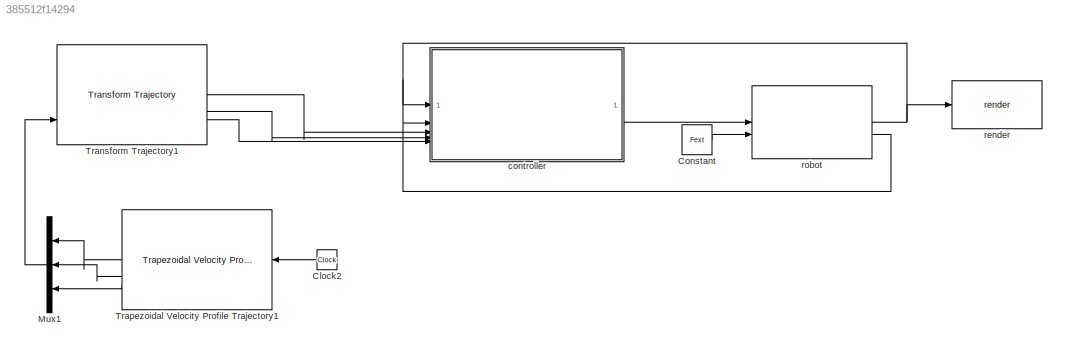
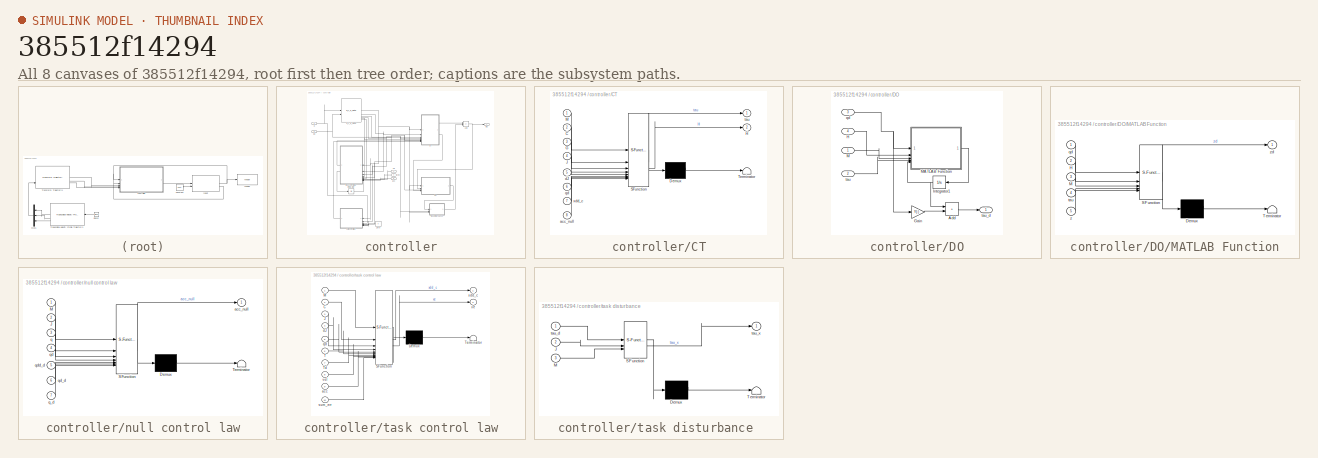
[diagram: thumbnail index - all 8 canvases of the model, root first then tree order]
MODEL slx_385512f14294
KIND model
CONFIG AbsTol = auto
CONFIG EnableMultiTasking = off
CONFIG FixedStep = auto
CONFIG MaxStep = 0.2
CONFIG MinStep = auto
CONFIG PostLoadFcn = rigid_body = importrobot('urdf\lbr_description\urdf\iiwa7.urdf');\nrigid_body.DataFormat = 'column';\nrigid_body.Gravity = [0 0 -9.81];\ninit_joint_pos = [0 75 0 -94 0 -81 0] / 180 * pi;\nrobot = get_robot_chain(rigid_body);\nn = robot.dof;\nT_init = forward_kin_general(robot, init_joint_pos);\nT_end = T_init;\nT_end(3,4) = T_end(3,4) + 0.5;\nFext = zeros(6,7);
CONFIG RelTol = 1e-3
CONFIG SampleTimeConstraint = Unconstrained
CONFIG SolverName = VariableStepAuto
CONFIG StartTime = 0.0
CONFIG StopTime = 10.0
BLOCK [Reference]  robot  REF=my_library/   (lib defined in slx_4b070192c2bc, slx_8dfaa4fb899d, +2 more)
  SourceBlock = my_library/
  SourceProductName = MyLibrary
BLOCK [Clock] Clock2
BLOCK [Constant] Constant
  Value = Fext
BLOCK [Mux] Mux1
  DisplayOption = bar
  Inputs = 3
BLOCK [Reference] Transform Trajectory1  REF=robotcorelib/Transform Trajectory
  LibrarySourceBlock = robotutilslib/Transform Trajectory
  SourceBlock = robotcorelib/Transform Trajectory
  SourceType = robotics.slcore.internal.block.TransformTrajSys
BLOCK [Reference] Trapezoidal Velocity Profile Trajectory1  REF=robotcorelib/Trapezoidal Velocity Profile Trajectory
  LibrarySourceBlock = robotutilslib/Trapezoidal Velocity Profile Trajectory
  SourceBlock = robotcorelib/Trapezoidal Velocity Profile Trajectory
  SourceType = robotics.slcore.internal.block.TrapVelTrajSys
BLOCK [SubSystem] controller
BLOCK [Sum] controller/Add
  IconShape = rectangular
  Inputs = +-
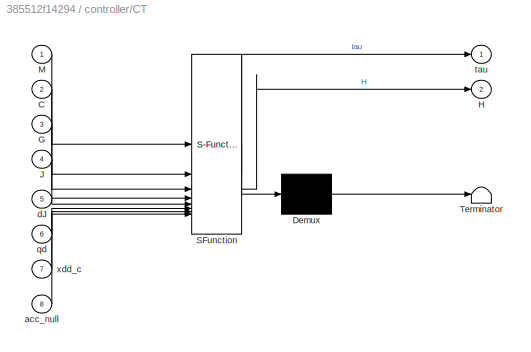
BLOCK [SubSystem] controller/CT
  ErrorFcn = Stateflow.Translate.translate
  PermitHierarchicalResolution = ExplicitOnly
  SFBlockType = MATLAB Function
  TreatAsAtomicUnit = on
BLOCK [Demux] controller/CT/ Demux 
  Outputs = 1
BLOCK [S-Function] controller/CT/ SFunction 
  EnableBusSupport = off
  FunctionName = sf_sfun
  PortCounts = [8 3]
  SFcnIsStateOwnerBlock = off
  SFunctionDeploymentMode = off
  Tag = Stateflow S-Function 8
BLOCK [Terminator] controller/CT/ Terminator 
BLOCK [Inport] controller/CT/C
  Port = 2
BLOCK [Inport] controller/CT/G
  Port = 3
BLOCK [Outport] controller/CT/H
  Port = 2
BLOCK [Inport] controller/CT/J
  Port = 4
BLOCK [Inport] controller/CT/M
BLOCK [Inport] controller/CT/acc_null
  Port = 8
BLOCK [Inport] controller/CT/dJ
  Port = 5
BLOCK [Inport] controller/CT/qd
  Port = 6
BLOCK [Outport] controller/CT/tau
  VectorParamsAs1DForOutWhenUnconnected = off
BLOCK [Inport] controller/CT/xdd_c
  Port = 7
BLOCK [SubSystem] controller/DO
BLOCK [Sum] controller/DO/Add
  IconShape = rectangular
BLOCK [Gain] controller/DO/Gain
  Gain = Y(:)
BLOCK [Inport] controller/DO/H
  Port = 4
BLOCK [Integrator] controller/DO/Integrator1
BLOCK [Inport] controller/DO/M
BLOCK [SubSystem] controller/DO/MATLAB Function
  ErrorFcn = Stateflow.Translate.translate
  PermitHierarchicalResolution = ExplicitOnly
  SFBlockType = MATLAB Function
  TreatAsAtomicUnit = on
BLOCK [Demux] controller/DO/MATLAB Function/ Demux 
  Outputs = 1
BLOCK [S-Function] controller/DO/MATLAB Function/ SFunction 
  EnableBusSupport = off
  FunctionName = sf_sfun
  Parameters = Y
  PortCounts = [5 2]
  SFcnIsStateOwnerBlock = off
  SFunctionDeploymentMode = off
  Tag = Stateflow S-Function 14
BLOCK [Terminator] controller/DO/MATLAB Function/ Terminator 
BLOCK [Inport] controller/DO/MATLAB Function/H
  Port = 2
BLOCK [Inport] controller/DO/MATLAB Function/M
  Port = 3
BLOCK [Inport] controller/DO/MATLAB Function/qd
BLOCK [Inport] controller/DO/MATLAB Function/tau
  Port = 4
BLOCK [Inport] controller/DO/MATLAB Function/z
  Port = 5
BLOCK [Outport] controller/DO/MATLAB Function/zd
  VectorParamsAs1DForOutWhenUnconnected = off
BLOCK [Inport] controller/DO/qd
  Port = 3
BLOCK [Inport] controller/DO/tau
  Port = 2
BLOCK [Outport] controller/DO/tau_d
BLOCK [Integrator] controller/Integrator
BLOCK [Inport] controller/Td
  Port = 3
BLOCK [Constant] controller/Zero
  OutDataTypeStr = Inherit: Inherit via back propagation
  Value = 0
BLOCK [Inport] controller/acc
  Port = 5
BLOCK [Reference] controller/m_c_g_matrix  REF=my_library/m_c_g_matrix  (lib defined in slx_4b070192c2bc, slx_8dfaa4fb899d, +2 more)
  SourceBlock = my_library/m_c_g_matrix
BLOCK [SubSystem] controller/null control law
  ErrorFcn = Stateflow.Translate.translate
  PermitHierarchicalResolution = ExplicitOnly
  SFBlockType = MATLAB Function
  TreatAsAtomicUnit = on
BLOCK [Demux] controller/null control law/ Demux 
  Outputs = 1
BLOCK [S-Function] controller/null control law/ SFunction 
  EnableBusSupport = off
  FunctionName = sf_sfun
  Parameters = Bn,Kn
  PortCounts = [7 2]
  SFcnIsStateOwnerBlock = off
  SFunctionDeploymentMode = off
  Tag = Stateflow S-Function 10
BLOCK [Terminator] controller/null control law/ Terminator 
BLOCK [Inport] controller/null control law/J
  Port = 2
BLOCK [Inport] controller/null control law/M
BLOCK [Outport] controller/null control law/acc_null
BLOCK [Inport] controller/null control law/q
  Port = 3
BLOCK [Inport] controller/null control law/q_d
  Port = 7
BLOCK [Inport] controller/null control law/qd
  Port = 4
BLOCK [Inport] controller/null control law/qd_d
  Port = 6
BLOCK [Inport] controller/null control law/qdd_d
  Port = 5
BLOCK [Inport] controller/q
BLOCK [Inport] controller/qd
  Port = 2
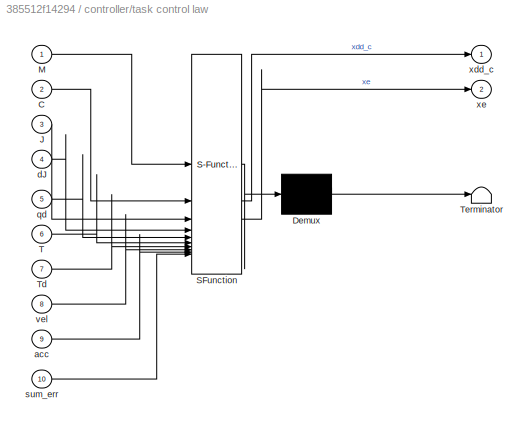
BLOCK [SubSystem] controller/task control law
  ErrorFcn = Stateflow.Translate.translate
  PermitHierarchicalResolution = ExplicitOnly
  SFBlockType = MATLAB Function
  TreatAsAtomicUnit = on
BLOCK [Demux] controller/task control law/ Demux 
  Outputs = 1
BLOCK [S-Function] controller/task control law/ SFunction 
  EnableBusSupport = off
  FunctionName = sf_sfun
  Parameters = Bx,Ki,Kx,mode
  PortCounts = [10 3]
  SFcnIsStateOwnerBlock = off
  SFunctionDeploymentMode = off
  Tag = Stateflow S-Function 9
BLOCK [Terminator] controller/task control law/ Terminator 
BLOCK [Inport] controller/task control law/C
  Port = 2
BLOCK [Inport] controller/task control law/J
  Port = 3
BLOCK [Inport] controller/task control law/M
BLOCK [Inport] controller/task control law/T
  Port = 6
BLOCK [Inport] controller/task control law/Td
  Port = 7
BLOCK [Inport] controller/task control law/acc
  Port = 9
BLOCK [Inport] controller/task control law/dJ
  Port = 4
BLOCK [Inport] controller/task control law/qd
  Port = 5
BLOCK [Inport] controller/task control law/sum_err
  Port = 10
BLOCK [Inport] controller/task control law/vel
  Port = 8
BLOCK [Outport] controller/task control law/xdd_c
BLOCK [Outport] controller/task control law/xe
  Port = 2
BLOCK [SubSystem] controller/task disturbance 
  ErrorFcn = Stateflow.Translate.translate
  PermitHierarchicalResolution = ExplicitOnly
  SFBlockType = MATLAB Function
  TreatAsAtomicUnit = on
BLOCK [Demux] controller/task disturbance / Demux 
  Outputs = 1
BLOCK [S-Function] controller/task disturbance / SFunction 
  EnableBusSupport = off
  FunctionName = sf_sfun
  PortCounts = [3 2]
  SFcnIsStateOwnerBlock = off
  SFunctionDeploymentMode = off
  Tag = Stateflow S-Function 11
BLOCK [Terminator] controller/task disturbance / Terminator 
BLOCK [Inport] controller/task disturbance /J
  Port = 2
BLOCK [Inport] controller/task disturbance /M
  Port = 3
BLOCK [Inport] controller/task disturbance /tau_d
BLOCK [Outport] controller/task disturbance /tau_x
BLOCK [Outport] controller/tau
BLOCK [Inport] controller/vel
  Port = 4
BLOCK [Reference] render  REF=my_library/render  (lib defined in slx_4b070192c2bc, slx_8dfaa4fb899d, +2 more)
  SourceBlock = my_library/render
  SourceProductName = MyLibrary
NET  robot:1 -> controller:1, render:1
LINE  robot:2 -> controller:2
LINE Clock2:1 -> Trapezoidal Velocity Profile Trajectory1:1
LINE Constant:1 ->  robot:2
LINE Mux1:1 -> Transform Trajectory1:3
LINE Transform Trajectory1:1 -> controller:3
LINE Transform Trajectory1:2 -> controller:4
LINE Transform Trajectory1:3 -> controller:5
LINE Trapezoidal Velocity Profile Trajectory1:1 -> Mux1:1
LINE Trapezoidal Velocity Profile Trajectory1:2 -> Mux1:2
LINE Trapezoidal Velocity Profile Trajectory1:3 -> Mux1:3
NET controller/Add:1 -> controller/DO:2, controller/tau:1
LINE controller/CT:1 -> controller/Add:1
LINE controller/CT:2 -> controller/DO:4
LINE controller/DO/Add:1 -> controller/DO/tau_d:1
LINE controller/DO/Gain:1 -> controller/DO/Add:2
LINE controller/DO/H:1 -> controller/DO/MATLAB Function:2
NET controller/DO/Integrator1:1 -> controller/DO/Add:1, controller/DO/MATLAB Function:5
LINE controller/DO/M:1 -> controller/DO/MATLAB Function:3
LINE controller/DO/MATLAB Function:1 -> controller/DO/Integrator1:1
NET controller/DO/qd:1 -> controller/DO/Gain:1, controller/DO/MATLAB Function:1
LINE controller/DO/tau:1 -> controller/DO/MATLAB Function:4
LINE controller/DO:1 -> controller/task disturbance :1
LINE controller/Integrator:1 -> controller/task control law:10
LINE controller/Td:1 -> controller/task control law:7
NET controller/Zero:1 -> controller/null control law:5, controller/null control law:6, controller/null control law:7
LINE controller/acc:1 -> controller/task control law:9
NET controller/m_c_g_matrix:1 -> controller/CT:1, controller/DO:1, controller/null control law:1, controller/task control law:1, controller/task disturbance :3
NET controller/m_c_g_matrix:2 -> controller/CT:2, controller/task control law:2
LINE controller/m_c_g_matrix:3 -> controller/CT:3
NET controller/m_c_g_matrix:4 -> controller/CT:4, controller/null control law:2, controller/task control law:3, controller/task disturbance :2
NET controller/m_c_g_matrix:5 -> controller/CT:5, controller/task control law:4
LINE controller/m_c_g_matrix:8 -> controller/task control law:6
LINE controller/null control law:1 -> controller/CT:8
NET controller/q:1 -> controller/m_c_g_matrix:1, controller/null control law:3
NET controller/qd:1 -> controller/CT:6, controller/DO:3, controller/m_c_g_matrix:2, controller/null control law:4, controller/task control law:5
LINE controller/task control law:1 -> controller/CT:7
LINE controller/task control law:2 -> controller/Integrator:1
LINE controller/task disturbance :1 -> controller/Add:2
LINE controller/vel:1 -> controller/task control law:8
LINE controller:1 ->  robot:1
note: NET lines group one-source signal fan-out (src -> all destinations, sorted); 1:1 wires keep LINE
CHART controller/CT states=1 transitions=1
  STATE_LABEL 'eML_blk_kernel()'
  STATE_LABEL 'SCRIPT:\nfunction [tau, H] = fcn(M, C, G, J, dJ, qd,xdd_c, acc_null)\n%#codegen\nacc_task = pinv_J_x(J, M, xdd_c - dJ * qd);\nqdd_c = acc_task + acc_null;\nH =  C * qd + G;\ntau = M * qdd_c + H;'
CHART controller/task control law states=1 transitions=1
  STATE_LABEL 'eML_blk_kernel()'
  STATE_LABEL "SCRIPT:\nfunction [xdd_c, xe] = fcn(M, C, J, dJ, qd,  T, Td, vel, acc, sum_err, Bx, Kx, Ki, mode)\nR = T(1:3,1:3);\nRd = Td(1:3,1:3);\np = T(1:3, 4);\npd = Td(1:3, 4);\nV = J * qd;\nxe = [logR(R' * Rd)'; R' * (pd - p)];\nxed = [R' * vel(1:3); R' * vel(4:6)] - V;\nxdd_d = [R' * (acc(1:3) - cross(R * V(1:3), vel(1:3))); R' * (acc(4:6) - cross(R * V(1:3), vel(4:6)))];\nif mode == 1\n%% PD\nxdd_c = xdd_d + Kx(:) ...<+333ch>"
CHART controller/null control law states=1 transitions=1
  STATE_LABEL 'eML_blk_kernel()'
  STATE_LABEL 'SCRIPT:\nfunction acc_null = fcn(M, J, q, qd, qdd_d, qd_d, q_d, Bn, Kn)\n%#codegen\nqed = qd_d - qd;\nqe = q_d - q;\nacc_null = null_proj(J, M, qdd_d + M \\ (Bn(:) .* qed + Kn(:) .* qe));\n'
CHART controller/task disturbance  states=1 transitions=1
  STATE_LABEL 'eML_blk_kernel()'
  STATE_LABEL "SCRIPT:\nfunction tau_x = fcn(tau_d, J, M)\n\ntau_x = J' * ((J * (M \\ J')) \\ J) * (M \\ tau_d) ;\n"
CHART controller/DO/MATLAB Function states=1 transitions=1
  STATE_LABEL 'eML_blk_kernel()'
  STATE_LABEL 'SCRIPT:\nfunction zd = fcn(qd, H, M, tau, z, Y)\n%#codegen\np = Y(:) .* qd;\nzd = Y(:) .* (M \\ (H - tau - z - p));\n'
CHART  states=0 transitions=0
CHART  states=0 transitions=0
CHART  states=0 transitions=0
CHART  states=0 transitions=0
CHART  states=0 transitions=0
